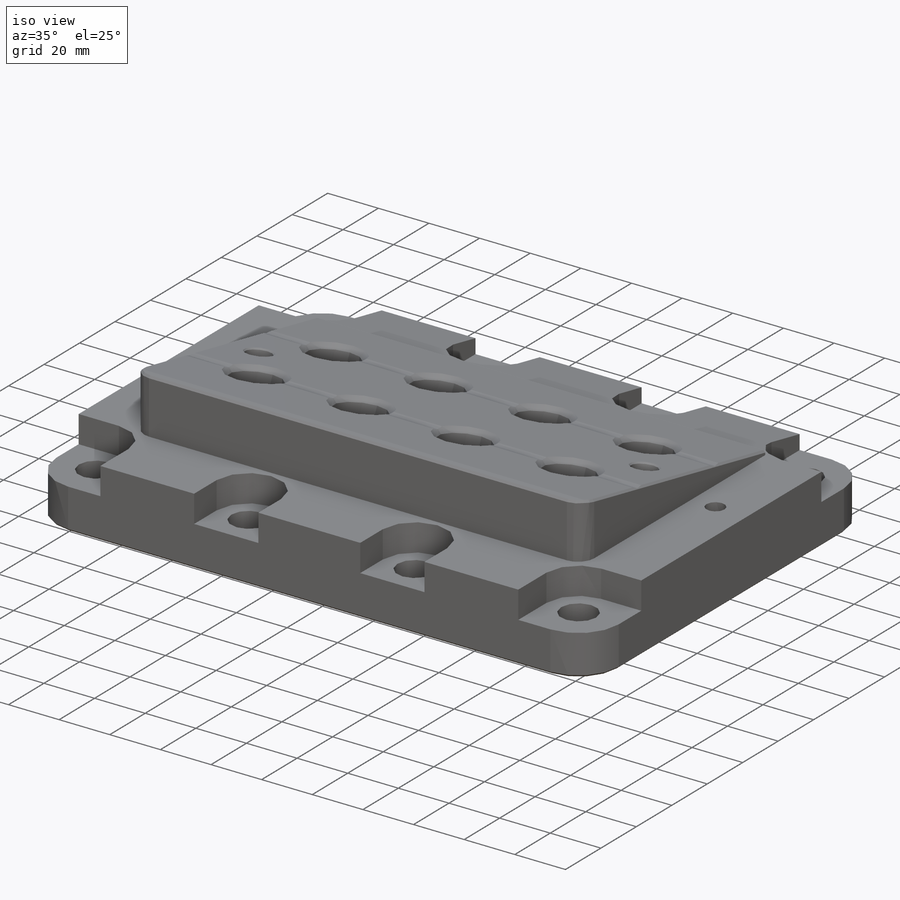
[diagram: iso view]
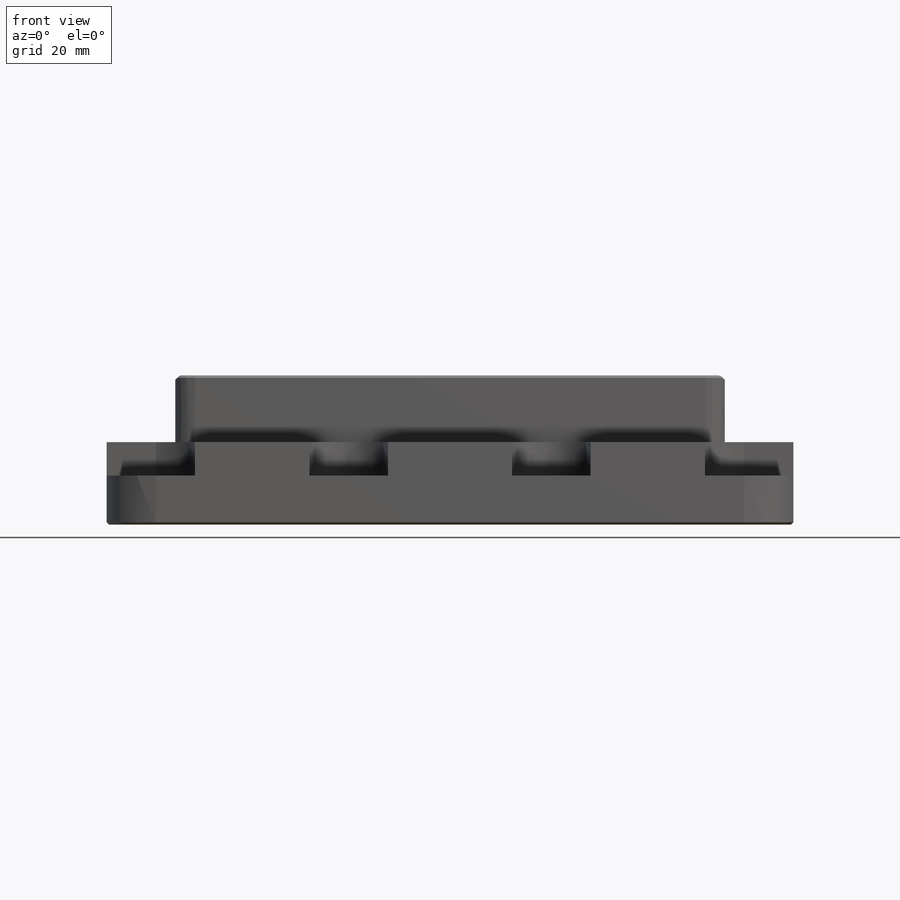
[diagram: front view]
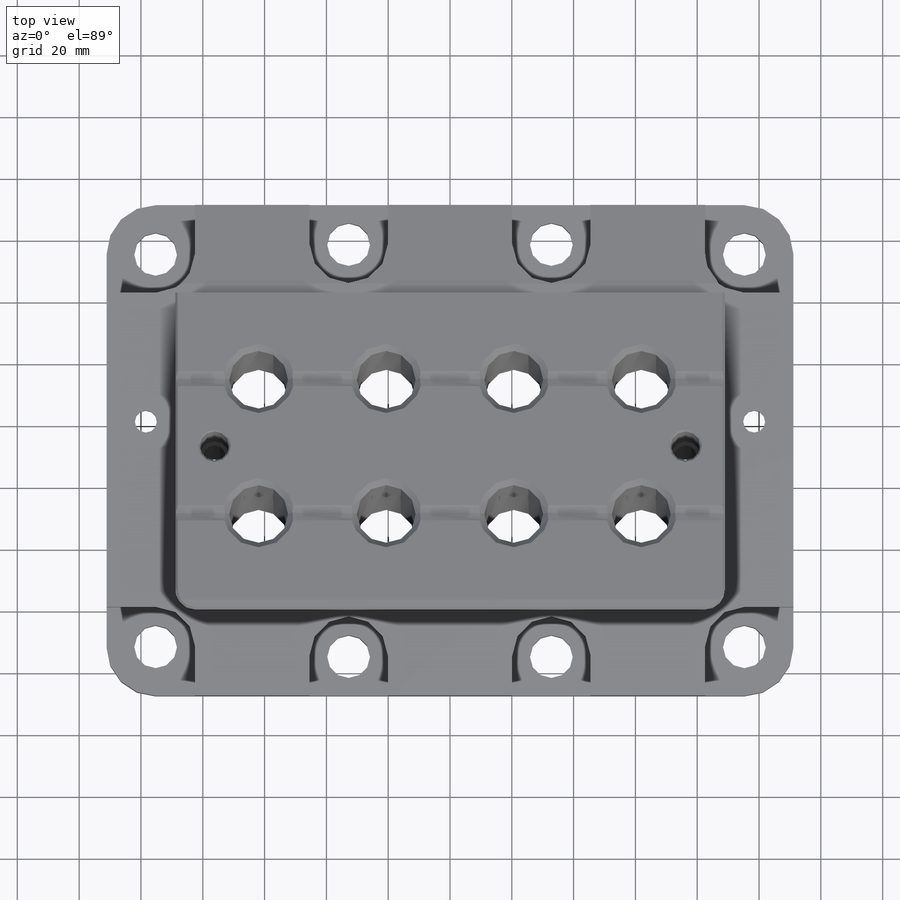
[diagram: top view]
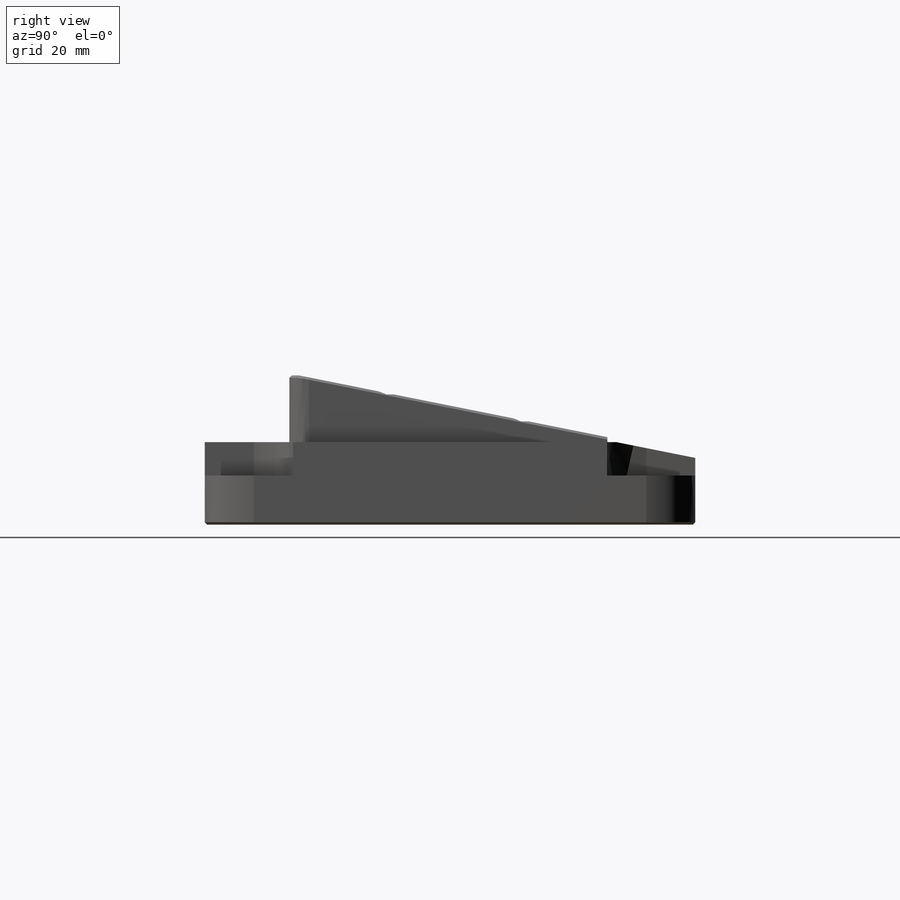
[diagram: right view]
SOLIDWORKS PART (.sldprt)
format: sldprt  version: not decoded by parser v0  size: 783,360 bytes
history: native  units: mm
features: sketch x18, hole x6, cut_extrude x4, chamfer x4, extrude x2, fillet x2, material x1 + 1 further entry (+13 scaffold rows collapsed)
feature tree (51):
  scaffold x13  (default folders/planes/origin — collapsed)
  material  "6061-T6 Al"
  "Origin"  ID=-1
  sketch  "Sketch1"  dims[c1.D1=~52.161789mm c2.D1=11.32deg c2.D2=48.3362mm c2.D3=63.5mm c2.D4=7.112mm c3.D3=102.362mm c3.D4=102.87mm c3.D2=~33.892363mm c3.D5=28.8544mm c4.D3=48.26mm c4.D5=27.94mm]
  extrude  "Extrude1"  Depth=177.8mm
  sketch  "Sketch5"  dims[c1.D1=28.575mm c1.D2=31.75mm c2.D1=131.699mm c2.D2=158.75mm c2.D3=26.67mm c2.D4=1.016mm c3.D1=27.051mm c4.D1=56.4007mm]
  extrude  "Extrude2"  Depth=222.25mm
  hole  "3/4 (0.75) Diameter Hole2"  Diameter=19.05mm Depth=53.323011mm
  sketch  "Sketch61"  dims[c1.D1=~28.85948mm c1.D2=44.45mm c1.D3=41.275mm c2.D1=99.314mm]
  sketch  "Sketch60"  dims[hole-wizard template sketch: 54 standard entries collapsed; hole parameters kept: c17.Thru Hole Dia.=19.05mm c17.Thru Hole Depth=~53.323011mm c17.Near C'Sink Dia.=22.86mm c17.D4=~3.666174mm c17.Near C'Sink Angle=90.0deg]
  sketch  "Sketch62"  dims[D1=12.7mm D5=12.7mm D2=12.7mm D3=12.7mm D4=~65.616667mm D6=15.875mm D7=15.875mm D8=15.875mm]
  cut_extrude  "Extrude31"  Depth=15.875mm
  hole  "1/2 Clearance Hole1"  Diameter=13.89126mm Depth=15.875mm
  sketch  "Sketch64"
  sketch  "Sketch63"  dims[hole-wizard template sketch: 54 standard entries collapsed; hole parameters kept: c17.Thru Hole Dia.=~13.89126mm c17.Thru Hole Depth=15.875mm c17.Far C'Sink Dia.=16.51mm c17.D4=~2.963249mm c17.Far C'Sink Angle=90.0deg]
  hole  "CBORE for 3/8 Socket Head Cap Screw2"  Diameter=9.525mm Depth=15.24mm
  sketch  "Sketch66"  dims[c1.D2=19.05mm c1.D1=152.4mm c2.D2=22.225mm]
  sketch  "Sketch65"  dims[hole-wizard template sketch: 28 standard entries collapsed; hole parameters kept: c8.C'Bore Dia.=9.5758mm c8.C'Bore Depth=3.302mm c8.Near C'Sink Dia.=10.668mm c8.D6=~4.399409mm c8.Near C'Sink Angle=90.0deg c8.D7=~14.816244mm c8.Drill Angle=118.0deg]
  hole  "9/32 (0.28125) Diameter Hole3"  Diameter=7.14375mm Depth=53.323011mm
  sketch  "Sketch68"
  sketch  "Sketch67"  dims[hole-wizard template sketch: 60 standard entries collapsed; hole parameters kept: c18.Thru Hole Depth=~53.323011mm]
  hole  "3/8 (0.375) Diameter Hole2"  Diameter=9.54278mm Depth=19.05mm
  sketch  "Sketch70"  dims[D1=196.85mm D2=13.8049mm]
  sketch  "Sketch69"  dims[hole-wizard template sketch: 46 standard entries collapsed; hole parameters above]
  sketch  "Sketch71"  dims[D1=5.08mm]
  cut_extrude  "Extrude32"  Depth=19.05mm
  chamfer  "Chamfer15"  Distance=2.286mm Angle=45deg
  hole  "9/32 (0.28125) Diameter Hole4"  Diameter=7.14375mm Depth=48.26mm
  sketch  "Sketch73"
  sketch  "Sketch72"  dims[hole-wizard template sketch: 60 standard entries collapsed; hole parameters kept: c18.Thru Hole Depth=48.26mm]
  sketch  "Sketch74"  dims[D1=25.4mm]
  cut_extrude  "Extrude33"  Depth=2.032mm
  fillet  "Fillet7"  Radius=15.875mm
  fillet  "Fillet8"  Radius=6.35mm
  chamfer  "Chamfer16"  Distance=0.762mm Angle=45deg
  chamfer  "Chamfer17"  Distance=0.762mm Angle=45deg
  chamfer  "Chamfer18"  Distance=0.762mm Angle=45deg
  sketch  "Sketch75"  dims[D1=12.7mm D2=0.508mm]
  cut_extrude  "Extrude34"  [1 undecoded]
decode coverage: 32 of 36 modeling features carry decoded parameters; 1 rows unclassified (native names shown)
note: ~ marks probable driven/reference dimensions
note: 1 parameter value undecoded
summary: Diameter pulled from absorbed wizard sketch
note: suppression state not decoded; provenance and decode notes live in map.json
